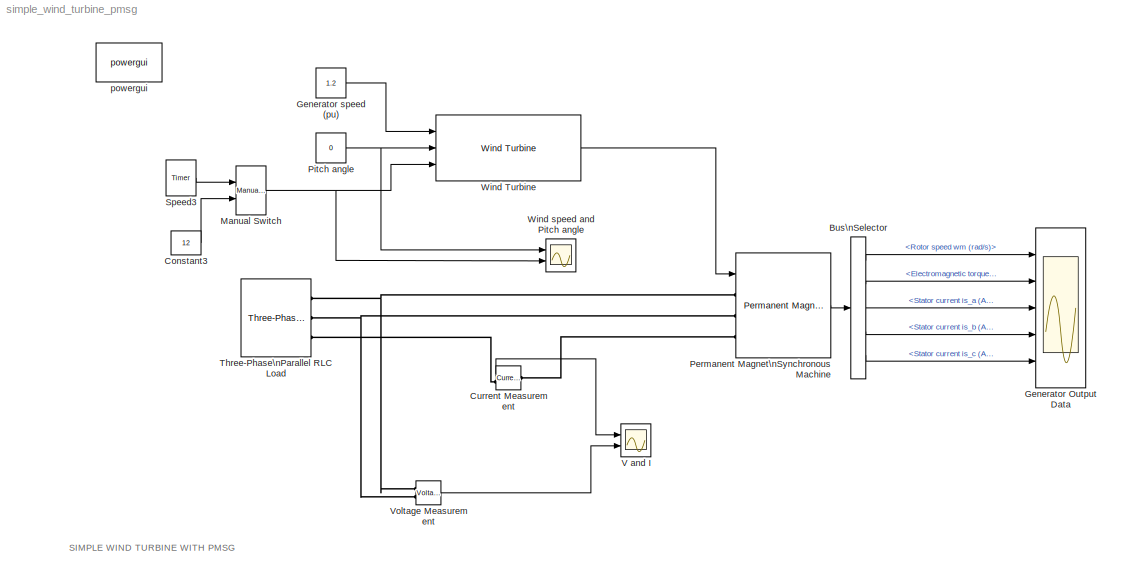
MODEL simple_wind_turbine_pmsg
KIND model
BLOCK [BusSelector] Bus\nSelector
  OutputAsBus = off
  OutputSignals = Rotor speed wm (rad/s),Electromagnetic torque Te (N*m),Stator current is_a (A),Stator current is_b (A),Stator current is_c (A)
  Ports = [1, 5]
  SID = 39
BLOCK [Constant] Constant3
  SID = 36
  Value = 12
BLOCK [Reference] Current Measurement  REF=powerlib/Measurements/Current Measurement
  OutputType = Complex
  PSBequivalent = 0
  PhasorSimulation = off
  Ports = [0, 1, 0, 0, 0, 1, 1]
  SID = 23
  SourceBlock = powerlib/Measurements/Current Measurement
  SourceProductBaseCode = PS
  SourceProductName = Simscape Electrical
  SourceType = Current Measurement
BLOCK [Scope] Generator Output Data
  Floating = off
  NumInputPorts = 5
  Ports = [5]
  SID = 28
  ScopeSpecificationString = C++SS(StrPVP('Location','[1, 48, 1281, 759]'),StrPVP('Open','off'),MxPVP('AxesTitles',54,'struct(''axes1'',''%<SignalLabel>'',''axes2'',''%<SignalLabel>'',''axes3'',''%<SignalLabel>'',''axes4'',''%<SignalLabel>'',''axes5'',''%<SignalLabel>'')'),MxPVP('ScopeGraphics',57,'struct(''FigureColor'',''[0.501960784313725 0.501960784313725 0.501960784313725]'',''AxesColor'',''[0 0 0]'',''AxesTickColor'',''...<+458ch>
BLOCK [Constant] Generator speed (pu)
  SID = 17
  Value = 1.2
BLOCK [Reference] Manual Switch  REF=simulink/Signal\nRouting/Manual Switch
  Ports = [2, 1]
  SID = 37
  SourceBlock = simulink/Signal\nRouting/Manual Switch
  SourceProductBaseCode = SL
  SourceProductName = Simulink
  SourceType = Manual Switch
  action = 0
  sw = 0
  varsize = off
BLOCK [Reference] Permanent Magnet\nSynchronous Machine  REF=powerlib/Machines/Permanent Magnet\nSynchronous Machine
  Flat = 120
  Flux = 0.55133
  FluxDistribution = Sinusoidal
  Inductance = 8.5e-3
  InitialConditions = [0,0, 0,0]
  InitialConditions5ph = [0 0 0 0 0 0]
  La = 0.000835
  MachineConstant = Voltage Constant (V_peak L-L / krpm)
  Mechanical = [0.00062 0.0003035 5 0]
  MechanicalLoad = Torque Tm
  NbPhases = 3
  PolePairs = 5
  Ports = [1, 1, 0, 0, 0, 3]
  PresetModel = No
  RefAngle = 90 degrees behind phase A axis (modified Park)
  Resistance = 0.0018
  RotorType = Round
  SID = 3
  ShowDetailedParameters = on
  SourceBlock = powerlib/Machines/Permanent Magnet\nSynchronous Machine
  SourceProductBaseCode = PS
  SourceProductName = Simscape Electrical
  SourceType = Permanent Magnet Synchronous Machine
  TorqueCst = 3.308
  TsBlock = -1
  TsPowergui = 0
  VoltageCst = 400
  dqInductances = [8.5e-3,8.5e-3]
BLOCK [Constant] Pitch angle
  SID = 10
  Value = 0
BLOCK [Reference] Speed3  REF=powerlib_extras/Control \nBlocks/Timer
  Ports = [0, 1]
  SID = 38
  SourceBlock = powerlib_extras/Control \nBlocks/Timer
  SourceProductBaseCode = PS
  SourceProductName = Simscape Electrical
  SourceType = Timer
  e = [12 8 12]
  t = [0 1 2]
BLOCK [Reference] Three-Phase\nParallel RLC Load  REF=powerlib/Elements/Three-Phase\nParallel RLC Load
  ActivePower = 110
  AttributesFormatString = \\n
  CapacitivePower = 0
  Configuration = Y (grounded)
  InductivePower = 0
  LConnTagsString = A|B|C
  LoadType = constant Z
  Measurements = None
  NominalFrequency = 50
  NominalVoltage = 400
  Ports = [0, 0, 0, 0, 0, 3]
  SID = 8
  SourceBlock = powerlib/Elements/Three-Phase\nParallel RLC Load
  SourceProductBaseCode = PS
  SourceProductName = Simscape Electrical
  SourceType = Three-Phase Parallel RLC Load
BLOCK [Scope] V and I
  Floating = off
  NumInputPorts = 2
  Ports = [2]
  SID = 21
  ScopeSpecificationString = C++SS(StrPVP('Location','[5, 48, 1285, 759]'),StrPVP('Open','off'),MxPVP('AxesTitles',54,'struct(''axes1'',''%<SignalLabel>'',''axes2'',''%<SignalLabel>'')'),MxPVP('ScopeGraphics',57,'struct(''FigureColor'',''[0.5 0.5 0.5]'',''AxesColor'',''[0 0 0]'',''AxesTickColor'',''[1 1 1]'',''LineColors'',''[1 1 0;1 0 1;0 1 1;1 0 0;0 1 0;0 0 1]'',''LineStyles'',''-|-|-|-|-|-'',''LineWidths'',''[0.5 0.5 0.5 0...<+375ch>
BLOCK [Reference] Voltage Measurement  REF=powerlib/Measurements/Voltage Measurement
  OutputType = Complex
  PSBequivalent = 0
  PhasorSimulation = off
  Ports = [0, 1, 0, 0, 0, 2]
  SID = 22
  SourceBlock = powerlib/Measurements/Voltage Measurement
  SourceProductBaseCode = PS
  SourceProductName = Simscape Electrical
  SourceType = Voltage Measurement
BLOCK [Reference] Wind Turbine  REF=re_lib/Wind Generation/Wind Turbine
  DisplayTurbChar = off
  P_wind_base = 0.73
  Pelec_base = 200/0.9
  Pnom = 200
  Ports = [3, 1]
  SID = 2
  SourceBlock = re_lib/Wind Generation/Wind Turbine
  SourceProductBaseCode = PS
  SourceProductName = Simscape Electrical
  SourceType = Wind Turbine
  c1_c6 = [0.51763          116          0.4            5           21     0.006795]
  cp_nom = 0.48
  lambda_nom = 8.1
  pitch_angle = 0
  speed_nom = 1.2
  wind_base = 12
BLOCK [Scope] Wind speed and Pitch angle
  Floating = off
  NumInputPorts = 2
  Ports = [2]
  SID = 42
  ScopeSpecificationString = C++SS(StrPVP('Location','[5, 48, 1285, 759]'),StrPVP('Open','off'),MxPVP('AxesTitles',54,'struct(''axes1'',''Pitch angle'',''axes2'',''Wind speed'')'),MxPVP('ScopeGraphics',57,'struct(''FigureColor'',''[0.5 0.5 0.5]'',''AxesColor'',''[0 0 0]'',''AxesTickColor'',''[1 1 1]'',''LineColors'',''[1 1 0;1 0 1;0 1 1;1 0 0;0 1 0;0 0 1]'',''LineStyles'',''-|-|-|-|-|-'',''LineWidths'',''[0.5 0.5 0.5 0.5 0.5 ...<+368ch>
BLOCK [Reference] powergui  REF=powerlib/powergui
  DisableRonSwitches = off
  DisableSnubberDevices = off
  DisableVfSwitches = off
  DisplayEquations = off
  DisplayStyle = 1
  EnableUseOfTLC = off
  ErrMax = 1e-4
  FreqAxis = off
  FunctionMessages = off
  HookPort = off
  Interpol = off
  Iterations = 50
  MaxFrequency = 1000
  Pbase = 100e6
  Ports = []
  Priority = 1
  ResistiveCurrentMeasurement = off
  RestoreLinks = warning
  SID = 19
  SPID = off
  SampleTime = 50e-6
  ShowGrid = off
  SolverType = Tustin
  SourceBlock = powerlib/powergui
  SourceProductBaseCode = PS
  SourceProductName = Simscape Electrical
  SourceType = PSB option menu block
  StartTime = 0.0
  SwTol = 0
  UnitsV = kV
  UnitsW = MW
  UserData = DataTag0
  UserDataPersistent = on
  Xlog = on
  Ylog = off
  ZoomFFT = off
  cycles = 1
  display = off
  echomessages = off
  frequency = 60
  frequencyindice = 0
  frequencyindicesteady = 1
  methode = off
  save = off
  variable = ZData
  x0status = blocks
ANNOTATION (root): SIMPLE WIND TURBINE WITH PMSG
LINE Bus\nSelector:1 -> Generator Output Data:1
LINE Bus\nSelector:2 -> Generator Output Data:2
LINE Bus\nSelector:3 -> Generator Output Data:3
LINE Bus\nSelector:4 -> Generator Output Data:4
LINE Bus\nSelector:5 -> Generator Output Data:5
LINE Constant3:1 -> Manual Switch:2
LINE Current Measurement:1 -> V and I:1
LINE Generator speed (pu):1 -> Wind Turbine:1
NET Manual Switch:1 -> Wind Turbine:3, Wind speed and Pitch angle:2
LINE Permanent Magnet\nSynchronous Machine:1 -> Bus\nSelector:1
NET Pitch angle:1 -> Wind Turbine:2, Wind speed and Pitch angle:1
LINE Speed3:1 -> Manual Switch:1
LINE Voltage Measurement:1 -> V and I:2
LINE Wind Turbine:1 -> Permanent Magnet\nSynchronous Machine:1
PLINE Current Measurement:LConn1 -- Permanent Magnet\nSynchronous Machine:LConn3
PLINE Current Measurement:RConn1 -- Three-Phase\nParallel RLC Load:LConn3
PNET net1: Permanent Magnet\nSynchronous Machine:LConn1 -- Three-Phase\nParallel RLC Load:LConn1 -- Voltage Measurement:LConn1
PNET net2: Permanent Magnet\nSynchronous Machine:LConn2 -- Three-Phase\nParallel RLC Load:LConn2 -- Voltage Measurement:LConn2
note: NET lines group one-source signal fan-out (src -> all destinations, sorted); 1:1 wires keep LINE; PNET lines group multi-terminal physical nets as a canonical sorted terminal list (undirected conserving connections); 2-terminal nets keep the pairwise PLINE form
